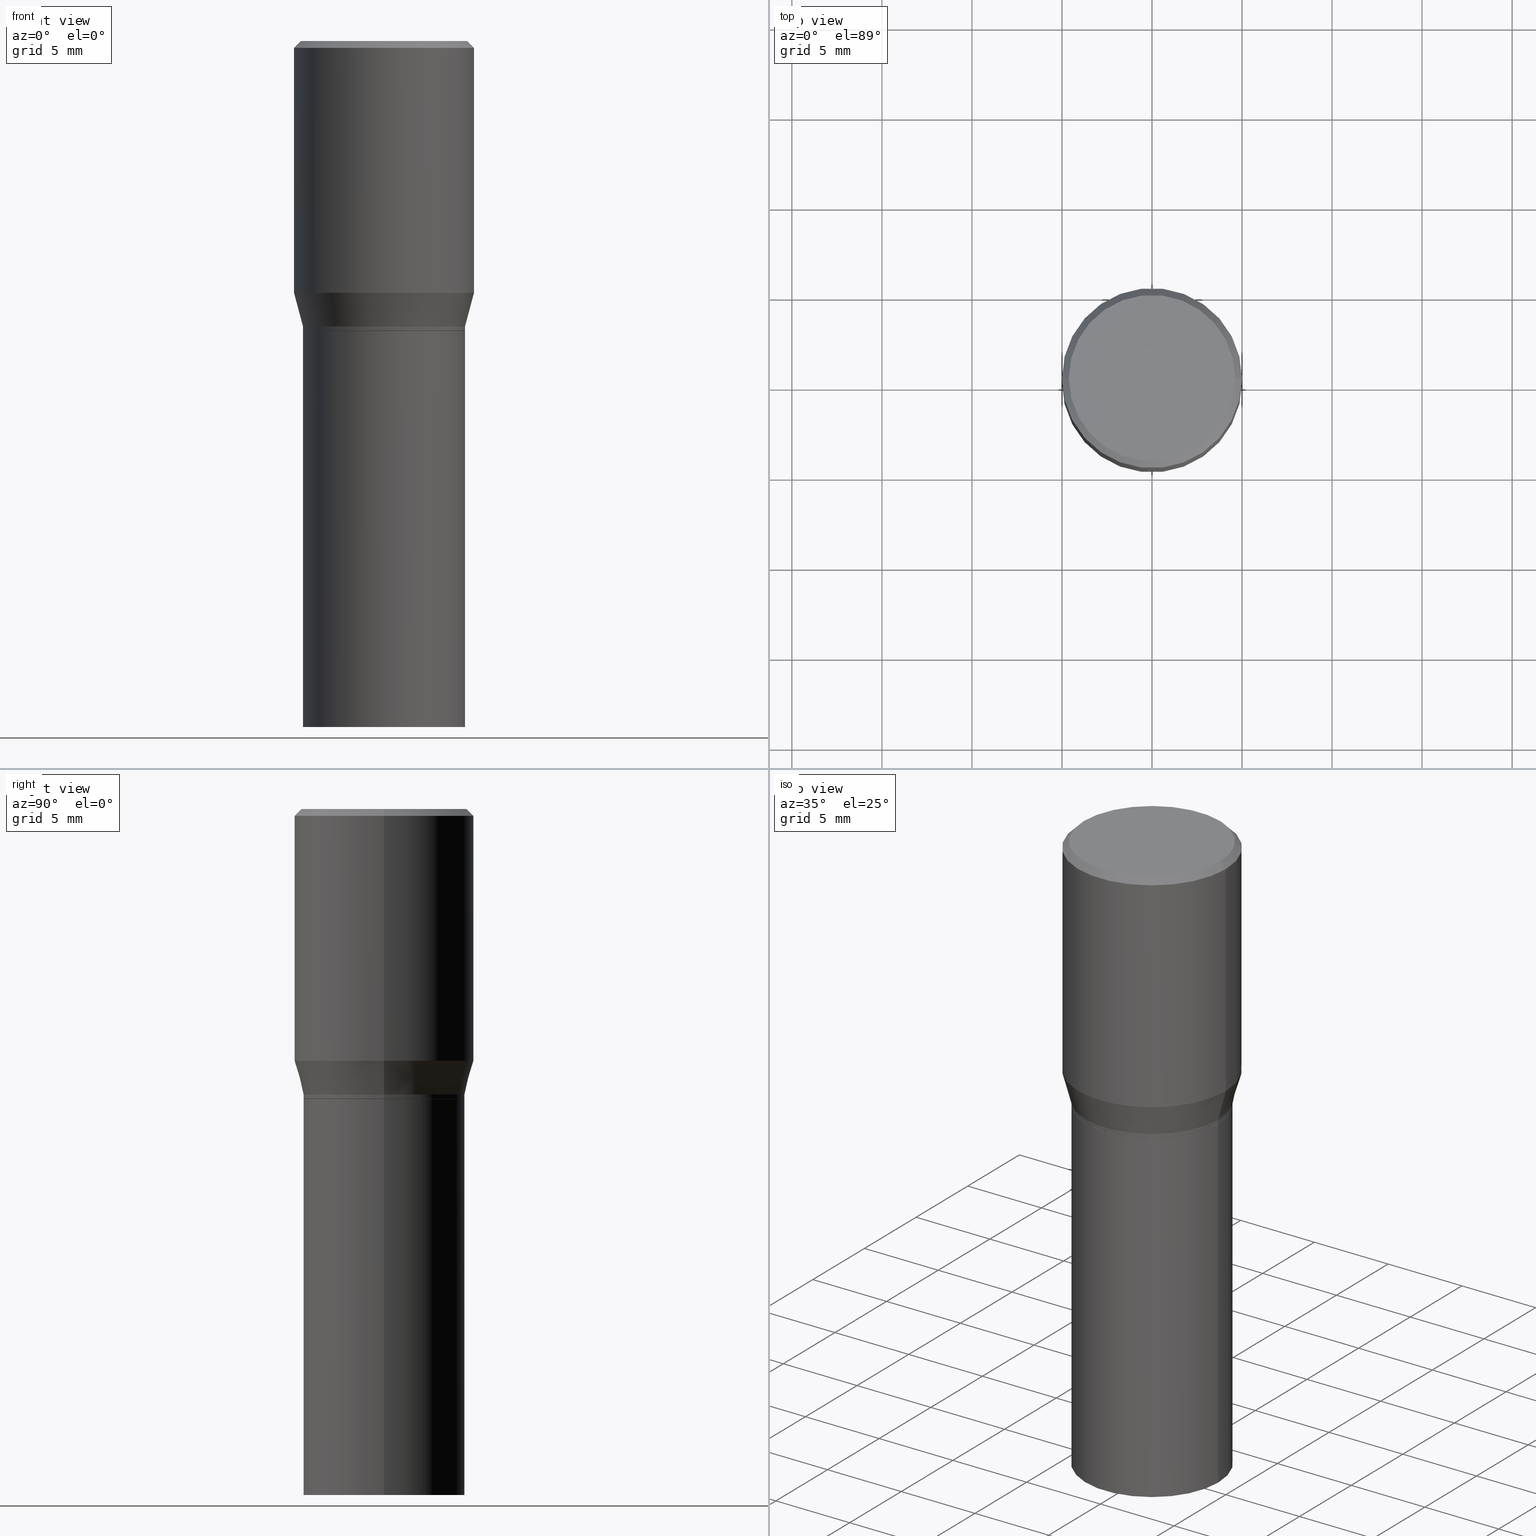
[diagram: canonical four-view strip — front | top / right | iso, engineering-drawing reading convention]
A machine part, canonical four-view strip (front | top / right | iso — engineering-drawing reading convention). The complete STEP part file that produces these views, byte-faithful:
ISO-10303-21;
HEADER;
FILE_DESCRIPTION (( 'STEP AP203' ),
    '1' );
FILE_NAME ('48662.STEP',
    '2024-03-12T19:40:19',
    ( '' ),
    ( '' ),
    'SwSTEP 2.0',
    'SolidWorks 2023',
    '' );
FILE_SCHEMA (( 'CONFIG_CONTROL_DESIGN' ));
ENDSEC;

DATA;
#1 = ORIENTED_EDGE ( 'NONE', *, *, #119, .F. ) ;
#2 = APPLICATION_CONTEXT ( 'configuration controlled 3d designs of mechanical parts and assemblies' ) ;
#3 = ORIENTED_EDGE ( 'NONE', *, *, #286, .T. ) ;
#4 = ADVANCED_FACE ( 'NONE', ( #360 ), #240, .F. ) ;
#5 = COORDINATED_UNIVERSAL_TIME_OFFSET ( 5, 0, .BEHIND. ) ;
#6 = ORIENTED_EDGE ( 'NONE', *, *, #158, .T. ) ;
#7 = ADVANCED_BREP_SHAPE_REPRESENTATION ( '48662', ( #460, #323, #337 ), #76 ) ;
#8 = VECTOR ( 'NONE', #53, 39.37007874015748143 ) ;
#9 = AXIS2_PLACEMENT_3D ( 'NONE', #16, #11, #416 ) ;
#10 = CARTESIAN_POINT ( 'NONE',  ( 0.000000000000000000, 0.000000000000000000, 0.000000000000000000 ) ) ;
#11 = DIRECTION ( 'NONE',  ( -2.445468806185136597E-29, 3.491481338843145583E-15, 1.000000000000000000 ) ) ;
#12 = ORIENTED_EDGE ( 'NONE', *, *, #145, .T. ) ;
#13 = APPROVAL_ROLE ( '' ) ;
#14 = DIRECTION ( 'NONE',  ( -2.445468806185136597E-29, 3.491481338843145583E-15, 1.000000000000000000 ) ) ;
#15 = CC_DESIGN_DATE_AND_TIME_ASSIGNMENT ( #92, #349, ( #91 ) ) ;
#16 = CARTESIAN_POINT ( 'NONE',  ( 1.548959941837665850E-29, -2.211504280023249073E-15, -0.6334000000000001851 ) ) ;
#17 = ORIENTED_EDGE ( 'NONE', *, *, #210, .F. ) ;
#18 = DIRECTION ( 'NONE',  ( -2.445468806185136597E-29, 3.491481338843145583E-15, 1.000000000000000000 ) ) ;
#19 = CLOSED_SHELL ( 'NONE', ( #398, #317, #361, #79 ) ) ;
#20 = APPROVAL_DATE_TIME ( #162, #402 ) ;
#21 = CARTESIAN_POINT ( 'NONE',  ( 3.668203209277705088E-31, -5.237222008264718399E-17, -0.01499999999999999944 ) ) ;
#22 = EDGE_LOOP ( 'NONE', ( #157, #115, #440, #118 ) ) ;
#23 = DIRECTION ( 'NONE',  ( -1.000000000000000000, 6.982962677686265922E-15, -4.876176775795935793E-29 ) ) ;
#24 = DIRECTION ( 'NONE',  ( -2.445468806185136597E-29, 3.491481338843145583E-15, 1.000000000000000000 ) ) ;
#25 = CC_DESIGN_PERSON_AND_ORGANIZATION_ASSIGNMENT ( #413, #264, ( #147 ) ) ;
#26 = CARTESIAN_POINT ( 'NONE',  ( 1.345933695668656235E-29, -1.921636608024489183E-15, -0.5503785990908939274 ) ) ;
#27 = LINE ( 'NONE', #457, #438 ) ;
#28 =( NAMED_UNIT ( * ) SI_UNIT ( $, .STERADIAN. ) SOLID_ANGLE_UNIT ( ) );
#29 = DIRECTION ( 'NONE',  ( 1.000000000000000000, -6.982962677686267499E-15, 0.000000000000000000 ) ) ;
#30 = DATE_TIME_ROLE ( 'classification_date' ) ;
#31 = AXIS2_PLACEMENT_3D ( 'NONE', #312, #85, #231 ) ;
#32 = LINE ( 'NONE', #180, #52 ) ;
#33 = EDGE_CURVE ( 'NONE', #161, #463, #259, .T. ) ;
#34 = APPROVAL_DATE_TIME ( #110, #206 ) ;
#35 = CC_DESIGN_APPROVAL ( #402, ( #147 ) ) ;
#36 = ORIENTED_EDGE ( 'NONE', *, *, #192, .F. ) ;
#37 = CALENDAR_DATE ( 2024, 12, 3 ) ;
#38 = ORIENTED_EDGE ( 'NONE', *, *, #434, .T. ) ;
#39 = CARTESIAN_POINT ( 'NONE',  ( 0.1771500000000001129, -3.415367045656361716E-15, -0.6239000000000001211 ) ) ;
#40 = CARTESIAN_POINT ( 'NONE',  ( 1.550182676240758652E-29, -2.213250020692670577E-15, -0.6339000000000001300 ) ) ;
#41 = ADVANCED_FACE ( 'NONE', ( #87 ), #387, .T. ) ;
#42 = ORIENTED_EDGE ( 'NONE', *, *, #365, .F. ) ;
#43 = AXIS2_PLACEMENT_3D ( 'NONE', #380, #313, #175 ) ;
#44 = AXIS2_PLACEMENT_3D ( 'NONE', #213, #130, #326 ) ;
#45 = ORIENTED_EDGE ( 'NONE', *, *, #195, .T. ) ;
#46 = LOCAL_TIME ( 15, 40, 19.00000000000000000, #367 ) ;
#47 = CARTESIAN_POINT ( 'NONE',  ( 0.1771500000000000019, -6.474253846616840571E-15, -1.500000000000000222 ) ) ;
#48 = DIRECTION ( 'NONE',  ( 1.000000000000000000, -6.982962677686266711E-15, 4.876176775795935793E-29 ) ) ;
#49 = ORIENTED_EDGE ( 'NONE', *, *, #192, .T. ) ;
#50 = CARTESIAN_POINT ( 'NONE',  ( 3.668203209277705088E-31, -5.237222008264718399E-17, -0.01499999999999999944 ) ) ;
#51 = ORIENTED_EDGE ( 'NONE', *, *, #355, .F. ) ;
#52 = VECTOR ( 'NONE', #223, 39.37007874015748143 ) ;
#53 = DIRECTION ( 'NONE',  ( -2.445468806185136877E-29, 3.491481338843145188E-15, 1.000000000000000000 ) ) ;
#54 = CARTESIAN_POINT ( 'NONE',  ( 0.1968500000000000527, -1.374596203102542003E-15, 9.598753983154302260E-30 ) ) ;
#55 = LINE ( 'NONE', #103, #343 ) ;
#56 = VERTEX_POINT ( 'NONE', #233 ) ;
#57 = FACE_OUTER_BOUND ( 'NONE', #382, .T. ) ;
#58 = LINE ( 'NONE', #376, #8 ) ;
#59 = EDGE_CURVE ( 'NONE', #348, #261, #58, .T. ) ;
#60 = DIRECTION ( 'NONE',  ( -0.7071067811865479058, 2.468850131082261005E-15, -0.7071067811865471286 ) ) ;
#61 = DIRECTION ( 'NONE',  ( -2.445468806185136597E-29, 3.491481338843145583E-15, 1.000000000000000000 ) ) ;
#62 = ORIENTED_EDGE ( 'NONE', *, *, #427, .F. ) ;
#63 = LINE ( 'NONE', #318, #301 ) ;
#64 = EDGE_CURVE ( 'NONE', #324, #316, #32, .T. ) ;
#65 = ORIENTED_EDGE ( 'NONE', *, *, #427, .T. ) ;
#66 = DIRECTION ( 'NONE',  ( 0.2588190451025220717, 1.565188264969615854E-15, 0.9659258262890678681 ) ) ;
#67 = AXIS2_PLACEMENT_3D ( 'NONE', #302, #439, #124 ) ;
#68 = VECTOR ( 'NONE', #185, 39.37007874015748143 ) ;
#69 = CARTESIAN_POINT ( 'NONE',  ( 1.550182676240758652E-29, -2.213250020692670577E-15, -0.6339000000000001300 ) ) ;
#70 = CARTESIAN_POINT ( 'NONE',  ( -0.1818500000000000116, 1.296037872978570989E-15, -6.472253288878428014E-18 ) ) ;
#71 =( CONVERSION_BASED_UNIT ( 'INCH', #97 ) LENGTH_UNIT ( ) NAMED_UNIT ( #131 ) );
#72 = FACE_OUTER_BOUND ( 'NONE', #435, .T. ) ;
#73 = CARTESIAN_POINT ( 'NONE',  ( 1.525727988178907107E-29, -2.178335207304238928E-15, -0.6239000000000001211 ) ) ;
#74 = DIRECTION ( 'NONE',  ( 1.000000000000000000, -6.982962677686266711E-15, 0.000000000000000000 ) ) ;
#75 = AXIS2_PLACEMENT_3D ( 'NONE', #305, #271, #245 ) ;
#76 =( GEOMETRIC_REPRESENTATION_CONTEXT ( 3 ) GLOBAL_UNCERTAINTY_ASSIGNED_CONTEXT ( ( #169 ) ) GLOBAL_UNIT_ASSIGNED_CONTEXT ( ( #71, #359, #28 ) ) REPRESENTATION_CONTEXT ( 'NONE', 'WORKASPACE' ) );
#77 = EDGE_CURVE ( 'NONE', #401, #154, #166, .T. ) ;
#78 = APPROVAL_STATUS ( 'not_yet_approved' ) ;
#79 = ADVANCED_FACE ( 'NONE', ( #295 ), #429, .F. ) ;
#80 = CONICAL_SURFACE ( 'NONE', #431, 0.1771500000000001129, 0.2617993877991508511 ) ;
#81 = EDGE_CURVE ( 'NONE', #194, #374, #176, .T. ) ;
#82 = LINE ( 'NONE', #193, #396 ) ;
#83 = CIRCLE ( 'NONE', #9, 0.1771500000000000852 ) ;
#84 = CARTESIAN_POINT ( 'NONE',  ( 0.000000000000000000, 0.000000000000000000, 0.000000000000000000 ) ) ;
#85 = DIRECTION ( 'NONE',  ( -2.445468806185136597E-29, 3.491481338843145583E-15, 1.000000000000000000 ) ) ;
#86 = ORIENTED_EDGE ( 'NONE', *, *, #158, .F. ) ;
#87 = FACE_OUTER_BOUND ( 'NONE', #306, .T. ) ;
#88 = DIRECTION ( 'NONE',  ( 1.000000000000000000, -6.982962677686266711E-15, 0.000000000000000000 ) ) ;
#89 = EDGE_LOOP ( 'NONE', ( #275, #209, #134, #6 ) ) ;
#90 = AXIS2_PLACEMENT_3D ( 'NONE', #423, #24, #251 ) ;
#91 = PRODUCT_DEFINITION ( 'UNKNOWN', '', #147, #244 ) ;
#92 = DATE_AND_TIME ( #37, #314 ) ;
#93 = ORIENTED_EDGE ( 'NONE', *, *, #266, .F. ) ;
#94 = CYLINDRICAL_SURFACE ( 'NONE', #454, 0.1771500000000000019 ) ;
#95 = ORIENTED_EDGE ( 'NONE', *, *, #77, .T. ) ;
#96 = LINE ( 'NONE', #415, #122 ) ;
#97 = LENGTH_MEASURE_WITH_UNIT ( LENGTH_MEASURE( 0.02539999999999999897 ), #108 );
#98 = PERSON_AND_ORGANIZATION ( #207, #184 ) ;
#99 = CARTESIAN_POINT ( 'NONE',  ( 0.1818500000000000116, -1.325221405919363357E-15, -6.472253288860382051E-18 ) ) ;
#100 = CARTESIAN_POINT ( 'NONE',  ( 1.582769352365941312E-46, -2.259775157835388046E-32, -6.472253288869456262E-18 ) ) ;
#101 = EDGE_LOOP ( 'NONE', ( #138, #281, #218, #51 ) ) ;
#102 = FACE_OUTER_BOUND ( 'NONE', #22, .T. ) ;
#103 = CARTESIAN_POINT ( 'NONE',  ( -0.1766500000000000015, -9.580762779724535881E-16, -0.6339000000000001300 ) ) ;
#104 = CYLINDRICAL_SURFACE ( 'NONE', #90, 0.1968500000000000527 ) ;
#105 = AXIS2_PLACEMENT_3D ( 'NONE', #421, #61, #164 ) ;
#106 = CIRCLE ( 'NONE', #370, 0.1818500000000000116 ) ;
#107 = CARTESIAN_POINT ( 'NONE',  ( 0.1766500000000000015, -3.446790377705949964E-15, -0.6339000000000001300 ) ) ;
#108 =( LENGTH_UNIT ( ) NAMED_UNIT ( * ) SI_UNIT ( $, .METRE. ) );
#109 = CARTESIAN_POINT ( 'NONE',  ( 1.550182676240758652E-29, -2.213250020692670577E-15, -0.6339000000000001300 ) ) ;
#110 = DATE_AND_TIME ( #327, #46 ) ;
#111 = ADVANCED_FACE ( 'NONE', ( #418 ), #104, .T. ) ;
#112 = CLOSED_SHELL ( 'NONE', ( #127, #41, #123, #111, #453, #424, #246, #345, #383, #4, #260, #465 ) ) ;
#113 = VECTOR ( 'NONE', #60, 39.37007874015748143 ) ;
#114 = PERSON_AND_ORGANIZATION ( #207, #184 ) ;
#115 = ORIENTED_EDGE ( 'NONE', *, *, #272, .T. ) ;
#116 = CIRCLE ( 'NONE', #150, 0.1968500000000000527 ) ;
#117 = EDGE_LOOP ( 'NONE', ( #3, #211 ) ) ;
#118 = ORIENTED_EDGE ( 'NONE', *, *, #145, .F. ) ;
#119 = EDGE_CURVE ( 'NONE', #194, #186, #373, .T. ) ;
#120 = DIRECTION ( 'NONE',  ( -2.445468806185136877E-29, 3.491481338843145188E-15, 1.000000000000000000 ) ) ;
#121 = DATE_AND_TIME ( #437, #191 ) ;
#122 = VECTOR ( 'NONE', #66, 39.37007874015748854 ) ;
#123 = ADVANCED_FACE ( 'NONE', ( #72 ), #129, .T. ) ;
#124 = DIRECTION ( 'NONE',  ( 1.000000000000000000, -6.982962677686267499E-15, 0.000000000000000000 ) ) ;
#125 = EDGE_LOOP ( 'NONE', ( #466, #263, #12, #428 ) ) ;
#126 = PLANE ( 'NONE',  #388 ) ;
#127 = ADVANCED_FACE ( 'NONE', ( #329 ), #182, .T. ) ;
#128 = ORIENTED_EDGE ( 'NONE', *, *, #395, .T. ) ;
#129 = CONICAL_SURFACE ( 'NONE', #300, 0.1968500000000000250, 0.7853981633974488341 ) ;
#130 = DIRECTION ( 'NONE',  ( -2.445468806185136597E-29, 3.491481338843145583E-15, 1.000000000000000000 ) ) ;
#131 = DIMENSIONAL_EXPONENTS ( 1.000000000000000000, 0.000000000000000000, 0.000000000000000000, 0.000000000000000000, 0.000000000000000000, 0.000000000000000000, 0.000000000000000000 ) ;
#132 = CARTESIAN_POINT ( 'NONE',  ( -0.1968500000000000250, 4.116989612901891144E-16, -0.01499999999999999944 ) ) ;
#133 = PRODUCT ( '48662', '48662', '', ( #369 ) ) ;
#134 = ORIENTED_EDGE ( 'NONE', *, *, #333, .T. ) ;
#135 = FACE_OUTER_BOUND ( 'NONE', #406, .T. ) ;
#136 = APPLICATION_CONTEXT ( 'configuration controlled 3d designs of mechanical parts and assemblies' ) ;
#137 = DIRECTION ( 'NONE',  ( 1.000000000000000000, -6.982962677686265922E-15, 0.000000000000000000 ) ) ;
#138 = ORIENTED_EDGE ( 'NONE', *, *, #224, .T. ) ;
#139 = DIRECTION ( 'NONE',  ( -2.445468806185136877E-29, 3.491481338843145188E-15, 1.000000000000000000 ) ) ;
#140 = DIRECTION ( 'NONE',  ( -2.445468806185136877E-29, 3.491481338843145188E-15, 1.000000000000000000 ) ) ;
#141 = AXIS2_PLACEMENT_3D ( 'NONE', #258, #330, #48 ) ;
#142 = AXIS2_PLACEMENT_3D ( 'NONE', #283, #160, #170 ) ;
#143 = DIRECTION ( 'NONE',  ( -0.2588190451025220717, 5.211531920934554197E-15, 0.9659258262890678681 ) ) ;
#144 = CC_DESIGN_PERSON_AND_ORGANIZATION_ASSIGNMENT ( #149, #296, ( #133 ) ) ;
#145 = EDGE_CURVE ( 'NONE', #463, #341, #82, .T. ) ;
#146 = AXIS2_PLACEMENT_3D ( 'NONE', #220, #181, #23 ) ;
#147 = PRODUCT_DEFINITION_FORMATION_WITH_SPECIFIED_SOURCE ( 'ANY', '', #133, .NOT_KNOWN. ) ;
#148 = SHAPE_DEFINITION_REPRESENTATION ( #285, #7 ) ;
#149 = PERSON_AND_ORGANIZATION ( #207, #184 ) ;
#150 = AXIS2_PLACEMENT_3D ( 'NONE', #26, #379, #204 ) ;
#151 = CIRCLE ( 'NONE', #462, 0.1771500000000000019 ) ;
#152 = ORIENTED_EDGE ( 'NONE', *, *, #224, .F. ) ;
#153 = PRODUCT_RELATED_PRODUCT_CATEGORY ( 'detail', '', ( #133 ) ) ;
#154 = VERTEX_POINT ( 'NONE', #265 ) ;
#155 = AXIS2_PLACEMENT_3D ( 'NONE', #109, #255, #29 ) ;
#156 = DIRECTION ( 'NONE',  ( 1.000000000000000000, -6.982962677686265922E-15, 0.000000000000000000 ) ) ;
#157 = ORIENTED_EDGE ( 'NONE', *, *, #365, .T. ) ;
#158 = EDGE_CURVE ( 'NONE', #261, #316, #331, .T. ) ;
#159 = DIRECTION ( 'NONE',  ( -2.445468806185136597E-29, 3.491481338843145583E-15, 1.000000000000000000 ) ) ;
#160 = DIRECTION ( 'NONE',  ( -2.445468806185136597E-29, 3.491481338843145583E-15, 1.000000000000000000 ) ) ;
#161 = VERTEX_POINT ( 'NONE', #199 ) ;
#162 = DATE_AND_TIME ( #356, #425 ) ;
#163 = CARTESIAN_POINT ( 'NONE',  ( 3.576687321579069994E-29, -5.368277968210015545E-15, -1.500000000000000222 ) ) ;
#164 = DIRECTION ( 'NONE',  ( 1.000000000000000000, -6.982962677686265922E-15, 0.000000000000000000 ) ) ;
#165 = ORIENTED_EDGE ( 'NONE', *, *, #167, .T. ) ;
#166 = CIRCLE ( 'NONE', #352, 0.1766500000000000015 ) ;
#167 = EDGE_CURVE ( 'NONE', #348, #449, #461, .T. ) ;
#168 = AXIS2_PLACEMENT_3D ( 'NONE', #358, #444, #249 ) ;
#169 = UNCERTAINTY_MEASURE_WITH_UNIT (LENGTH_MEASURE( 1.000000000000000082E-05 ), #71, 'distance_accuracy_value', 'NONE');
#170 = DIRECTION ( 'NONE',  ( 1.000000000000000000, -6.982962677686265922E-15, 0.000000000000000000 ) ) ;
#171 = EDGE_LOOP ( 'NONE', ( #232, #165, #298, #86 ) ) ;
#172 = APPLICATION_PROTOCOL_DEFINITION ( 'international standard', 'config_control_design', 1994, #136 ) ;
#173 = DIRECTION ( 'NONE',  ( -0.7071067811865715536, 7.493145998870439357E-15, 0.7071067811865232589 ) ) ;
#174 = DIRECTION ( 'NONE',  ( 1.000000000000000000, -6.982962677686265922E-15, 0.000000000000000000 ) ) ;
#175 = DIRECTION ( 'NONE',  ( 1.000000000000000000, -6.982962677686265922E-15, 4.876176775795935793E-29 ) ) ;
#176 = CIRCLE ( 'NONE', #362, 0.1771500000000000852 ) ;
#177 = AXIS2_PLACEMENT_3D ( 'NONE', #309, #290, #389 ) ;
#178 = APPROVAL_ROLE ( '' ) ;
#179 = CC_DESIGN_PERSON_AND_ORGANIZATION_ASSIGNMENT ( #228, #403, ( #91 ) ) ;
#180 = CARTESIAN_POINT ( 'NONE',  ( 0.1968500000000000250, -1.402861250943973297E-15, -0.01499999999999999944 ) ) ;
#181 = DIRECTION ( 'NONE',  ( 2.438088387897960049E-29, -3.491481338843145188E-15, -1.000000000000000000 ) ) ;
#182 = CYLINDRICAL_SURFACE ( 'NONE', #141, 0.1771500000000001129 ) ;
#183 = CC_DESIGN_PERSON_AND_ORGANIZATION_ASSIGNMENT ( #98, #340, ( #147 ) ) ;
#184 = ORGANIZATION ( 'UNSPECIFIED', 'UNSPECIFIED', '' ) ;
#185 = DIRECTION ( 'NONE',  ( -2.445468806185136877E-29, 3.491481338843145188E-15, 1.000000000000000000 ) ) ;
#186 = VERTEX_POINT ( 'NONE', #39 ) ;
#187 = CARTESIAN_POINT ( 'NONE',  ( 1.525727988178907107E-29, -2.178335207304238928E-15, -0.6239000000000001211 ) ) ;
#188 = EDGE_LOOP ( 'NONE', ( #299, #303 ) ) ;
#189 = CIRCLE ( 'NONE', #235, 0.1771500000000001129 ) ;
#190 = ORIENTED_EDGE ( 'NONE', *, *, #395, .F. ) ;
#191 = LOCAL_TIME ( 15, 40, 19.00000000000000000, #262 ) ;
#192 = EDGE_CURVE ( 'NONE', #407, #186, #189, .T. ) ;
#193 = CARTESIAN_POINT ( 'NONE',  ( 0.1771500000000000019, -1.237031838352122197E-15, 8.638147158322499960E-30 ) ) ;
#194 = VERTEX_POINT ( 'NONE', #357 ) ;
#195 = EDGE_CURVE ( 'NONE', #186, #407, #325, .T. ) ;
#196 = DIRECTION ( 'NONE',  ( 2.445468806185136597E-29, -3.491481338843145583E-15, -1.000000000000000000 ) ) ;
#197 = ORIENTED_EDGE ( 'NONE', *, *, #254, .T. ) ;
#198 = CARTESIAN_POINT ( 'NONE',  ( 1.550182676240758652E-29, -2.213250020692670577E-15, -0.6339000000000001300 ) ) ;
#199 = CARTESIAN_POINT ( 'NONE',  ( -0.1771500000000000019, -2.466509558079677081E-15, -1.500000000000000222 ) ) ;
#200 = CONICAL_SURFACE ( 'NONE', #332, 0.1968500000000000250, 0.7853981633974488341 ) ;
#201 = EDGE_LOOP ( 'NONE', ( #443, #338, #304, #36 ) ) ;
#202 = EDGE_CURVE ( 'NONE', #154, #374, #55, .T. ) ;
#203 = DIRECTION ( 'NONE',  ( -2.445468806185136877E-29, 3.491481338843145188E-15, 1.000000000000000000 ) ) ;
#204 = DIRECTION ( 'NONE',  ( 1.000000000000000000, -6.982962677686267499E-15, 0.000000000000000000 ) ) ;
#205 = ORIENTED_EDGE ( 'NONE', *, *, #81, .T. ) ;
#206 = APPROVAL ( #257, 'UNSPECIFIED' ) ;
#207 = PERSON ( 'UNSPECIFIED', 'UNSPECIFIED', 'UNSPECIFIED', ('UNSPECIFIED'), ('UNSPECIFIED'), ('UNSPECIFIED') ) ;
#208 = DIRECTION ( 'NONE',  ( -2.445468806185136597E-29, 3.491481338843145583E-15, 1.000000000000000000 ) ) ;
#209 = ORIENTED_EDGE ( 'NONE', *, *, #254, .F. ) ;
#210 = EDGE_CURVE ( 'NONE', #374, #194, #83, .T. ) ;
#211 = ORIENTED_EDGE ( 'NONE', *, *, #308, .T. ) ;
#212 = AXIS2_PLACEMENT_3D ( 'NONE', #268, #236, #156 ) ;
#213 = CARTESIAN_POINT ( 'NONE',  ( 0.000000000000000000, 0.000000000000000000, 0.000000000000000000 ) ) ;
#214 = SECURITY_CLASSIFICATION ( '', '', #238 ) ;
#215 = PLANE ( 'NONE',  #168 ) ;
#216 = COORDINATED_UNIVERSAL_TIME_OFFSET ( 5, 0, .BEHIND. ) ;
#217 = CARTESIAN_POINT ( 'NONE',  ( 1.582769352365941312E-46, -2.259775157835388046E-32, -6.472253288869456262E-18 ) ) ;
#218 = ORIENTED_EDGE ( 'NONE', *, *, #239, .F. ) ;
#219 = DIRECTION ( 'NONE',  ( 1.000000000000000000, -6.982962677686266711E-15, 0.000000000000000000 ) ) ;
#220 = CARTESIAN_POINT ( 'NONE',  ( 1.237031838352137579E-15, 0.1771499999999977815, -0.6339000000000009072 ) ) ;
#221 = DATE_AND_TIME ( #464, #426 ) ;
#222 = PERSON_AND_ORGANIZATION_ROLE ( 'classification_officer' ) ;
#223 = DIRECTION ( 'NONE',  ( 0.7071067811865479058, -7.319954787623257623E-15, -0.7071067811865471286 ) ) ;
#224 = EDGE_CURVE ( 'NONE', #449, #348, #116, .T. ) ;
#225 = ORIENTED_EDGE ( 'NONE', *, *, #229, .T. ) ;
#226 = AXIS2_PLACEMENT_3D ( 'NONE', #100, #442, #274 ) ;
#227 = CC_DESIGN_SECURITY_CLASSIFICATION ( #214, ( #147 ) ) ;
#228 = PERSON_AND_ORGANIZATION ( #207, #184 ) ;
#229 = EDGE_CURVE ( 'NONE', #154, #401, #289, .T. ) ;
#230 = ORIENTED_EDGE ( 'NONE', *, *, #333, .F. ) ;
#231 = DIRECTION ( 'NONE',  ( 1.000000000000000000, -6.982962677686265922E-15, 0.000000000000000000 ) ) ;
#232 = ORIENTED_EDGE ( 'NONE', *, *, #59, .F. ) ;
#233 = CARTESIAN_POINT ( 'NONE',  ( -0.1771500000000000019, -2.466509558079677081E-15, -0.6339000000000001300 ) ) ;
#234 = DIRECTION ( 'NONE',  ( -1.000000000000000000, 6.982962677686265922E-15, 0.000000000000000000 ) ) ;
#235 = AXIS2_PLACEMENT_3D ( 'NONE', #187, #315, #137 ) ;
#236 = DIRECTION ( 'NONE',  ( -2.445468806185136597E-29, 3.491481338843145583E-15, 1.000000000000000000 ) ) ;
#237 = CONICAL_SURFACE ( 'NONE', #31, 0.1771500000000001129, 0.2617993877991508511 ) ;
#238 = SECURITY_CLASSIFICATION_LEVEL ( 'unclassified' ) ;
#239 = EDGE_CURVE ( 'NONE', #316, #261, #294, .T. ) ;
#240 = PLANE ( 'NONE',  #43 ) ;
#241 = ORIENTED_EDGE ( 'NONE', *, *, #375, .F. ) ;
#242 = FACE_OUTER_BOUND ( 'NONE', #414, .T. ) ;
#243 = DIRECTION ( 'NONE',  ( -2.445468806185136597E-29, 3.491481338843145583E-15, 1.000000000000000000 ) ) ;
#244 = DESIGN_CONTEXT ( 'detailed design', #2, 'design' ) ;
#245 = DIRECTION ( 'NONE',  ( 1.000000000000000000, -6.982962677686266711E-15, 0.000000000000000000 ) ) ;
#246 = ADVANCED_FACE ( 'NONE', ( #393 ), #347, .T. ) ;
#247 = CARTESIAN_POINT ( 'NONE',  ( -0.1968500000000000250, 1.322223983019894529E-15, -0.01499999999999999944 ) ) ;
#248 = EDGE_LOOP ( 'NONE', ( #205, #38, #310, #1 ) ) ;
#249 = DIRECTION ( 'NONE',  ( -1.000000000000000000, 6.982962677686265922E-15, -4.876176775795935793E-29 ) ) ;
#250 = FACE_OUTER_BOUND ( 'NONE', #336, .T. ) ;
#251 = DIRECTION ( 'NONE',  ( 1.000000000000000000, -6.982962677686266711E-15, 4.876176775795935793E-29 ) ) ;
#252 = AXIS2_PLACEMENT_3D ( 'NONE', #287, #420, #269 ) ;
#253 = PERSON_AND_ORGANIZATION ( #207, #184 ) ;
#254 = EDGE_CURVE ( 'NONE', #411, #324, #363, .T. ) ;
#255 = DIRECTION ( 'NONE',  ( -2.445468806185136597E-29, 3.491481338843145583E-15, 1.000000000000000000 ) ) ;
#256 = AXIS2_PLACEMENT_3D ( 'NONE', #452, #208, #455 ) ;
#257 = APPROVAL_STATUS ( 'not_yet_approved' ) ;
#258 = CARTESIAN_POINT ( 'NONE',  ( 0.000000000000000000, 0.000000000000000000, 0.000000000000000000 ) ) ;
#259 = CIRCLE ( 'NONE', #75, 0.1771500000000000019 ) ;
#260 = ADVANCED_FACE ( 'NONE', ( #250 ), #344, .T. ) ;
#261 = VERTEX_POINT ( 'NONE', #132 ) ;
#262 = COORDINATED_UNIVERSAL_TIME_OFFSET ( 5, 0, .BEHIND. ) ;
#263 = ORIENTED_EDGE ( 'NONE', *, *, #33, .T. ) ;
#264 = PERSON_AND_ORGANIZATION_ROLE ( 'creator' ) ;
#265 = CARTESIAN_POINT ( 'NONE',  ( -0.1766500000000000015, -9.554270507983421899E-16, -0.6339000000000001300 ) ) ;
#266 = EDGE_CURVE ( 'NONE', #324, #411, #106, .T. ) ;
#267 = CIRCLE ( 'NONE', #377, 0.1771500000000000019 ) ;
#268 = CARTESIAN_POINT ( 'NONE',  ( 3.668203209277705088E-31, -5.237222008264718399E-17, -0.01499999999999999944 ) ) ;
#269 = DIRECTION ( 'NONE',  ( 1.000000000000000000, -6.982962677686266711E-15, 0.000000000000000000 ) ) ;
#270 = ORIENTED_EDGE ( 'NONE', *, *, #81, .F. ) ;
#271 = DIRECTION ( 'NONE',  ( -2.445468806185136597E-29, 3.491481338843145583E-15, 1.000000000000000000 ) ) ;
#272 = EDGE_CURVE ( 'NONE', #161, #56, #63, .T. ) ;
#273 = LINE ( 'NONE', #247, #113 ) ;
#274 = DIRECTION ( 'NONE',  ( 1.000000000000000000, -6.982962677686266711E-15, 4.876336753188190607E-29 ) ) ;
#275 = ORIENTED_EDGE ( 'NONE', *, *, #64, .F. ) ;
#276 = CYLINDRICAL_SURFACE ( 'NONE', #44, 0.1771500000000000019 ) ;
#277 = FACE_OUTER_BOUND ( 'NONE', #201, .T. ) ;
#278 = APPROVAL ( #78, 'UNSPECIFIED' ) ;
#279 = FACE_OUTER_BOUND ( 'NONE', #89, .T. ) ;
#280 = DIRECTION ( 'NONE',  ( -2.445468806185136597E-29, 3.491481338843145583E-15, 1.000000000000000000 ) ) ;
#281 = ORIENTED_EDGE ( 'NONE', *, *, #59, .T. ) ;
#282 = CARTESIAN_POINT ( 'NONE',  ( 0.000000000000000000, 0.000000000000000000, 0.000000000000000000 ) ) ;
#283 = CARTESIAN_POINT ( 'NONE',  ( 3.668203209277705088E-31, -5.237222008264718399E-17, -0.01499999999999999944 ) ) ;
#284 = CARTESIAN_POINT ( 'NONE',  ( 0.1766500000000000015, -3.446790377705949964E-15, -0.6339000000000001300 ) ) ;
#285 = PRODUCT_DEFINITION_SHAPE ( 'NONE', 'NONE',  #91 ) ;
#286 = EDGE_CURVE ( 'NONE', #341, #56, #400, .T. ) ;
#287 = CARTESIAN_POINT ( 'NONE',  ( 1.550182676240758652E-29, -2.213250020692670577E-15, -0.6339000000000001300 ) ) ;
#288 = CARTESIAN_POINT ( 'NONE',  ( -0.1771500000000000852, -9.527778236242309889E-16, -0.6334000000000001851 ) ) ;
#289 = CIRCLE ( 'NONE', #256, 0.1766500000000000015 ) ;
#290 = DIRECTION ( 'NONE',  ( -2.445468806185136597E-29, 3.491481338843145583E-15, 1.000000000000000000 ) ) ;
#291 = LINE ( 'NONE', #422, #68 ) ;
#292 = PERSON_AND_ORGANIZATION ( #207, #184 ) ;
#293 = CARTESIAN_POINT ( 'NONE',  ( 0.1968500000000000527, -3.296232811127031185E-15, -0.5503785990908939274 ) ) ;
#294 = CIRCLE ( 'NONE', #142, 0.1968500000000000250 ) ;
#295 = FACE_OUTER_BOUND ( 'NONE', #117, .T. ) ;
#296 = PERSON_AND_ORGANIZATION_ROLE ( 'design_owner' ) ;
#297 = VECTOR ( 'NONE', #140, 39.37007874015748143 ) ;
#298 = ORIENTED_EDGE ( 'NONE', *, *, #355, .T. ) ;
#299 = ORIENTED_EDGE ( 'NONE', *, *, #77, .F. ) ;
#300 = AXIS2_PLACEMENT_3D ( 'NONE', #50, #196, #342 ) ;
#301 = VECTOR ( 'NONE', #139, 39.37007874015748143 ) ;
#302 = CARTESIAN_POINT ( 'NONE',  ( 1.345933695668656235E-29, -1.921636608024489183E-15, -0.5503785990908939274 ) ) ;
#303 = ORIENTED_EDGE ( 'NONE', *, *, #229, .F. ) ;
#304 = ORIENTED_EDGE ( 'NONE', *, *, #119, .T. ) ;
#305 = CARTESIAN_POINT ( 'NONE',  ( 3.668203209277704895E-29, -5.237222008264718177E-15, -1.500000000000000222 ) ) ;
#306 = EDGE_LOOP ( 'NONE', ( #95, #459, #270, #241 ) ) ;
#307 = DIRECTION ( 'NONE',  ( 1.000000000000000000, -6.982962677686266711E-15, 4.876176775795935793E-29 ) ) ;
#308 = EDGE_CURVE ( 'NONE', #56, #341, #267, .T. ) ;
#309 = CARTESIAN_POINT ( 'NONE',  ( 0.000000000000000000, 0.000000000000000000, 0.000000000000000000 ) ) ;
#310 = ORIENTED_EDGE ( 'NONE', *, *, #195, .F. ) ;
#311 = CARTESIAN_POINT ( 'NONE',  ( 3.668203209277704895E-29, -5.237222008264718177E-15, -1.500000000000000222 ) ) ;
#312 = CARTESIAN_POINT ( 'NONE',  ( 1.525727988178907107E-29, -2.178335207304238928E-15, -0.6239000000000001211 ) ) ;
#313 = DIRECTION ( 'NONE',  ( -2.438088387897960049E-29, 3.491481338843145188E-15, 1.000000000000000000 ) ) ;
#314 = LOCAL_TIME ( 15, 40, 19.00000000000000000, #5 ) ;
#315 = DIRECTION ( 'NONE',  ( -2.445468806185136597E-29, 3.491481338843145583E-15, 1.000000000000000000 ) ) ;
#316 = VERTEX_POINT ( 'NONE', #384 ) ;
#317 = ADVANCED_FACE ( 'NONE', ( #408 ), #126, .F. ) ;
#318 = CARTESIAN_POINT ( 'NONE',  ( -0.1771500000000000019, 1.258726456399017493E-15, -8.713893512386565325E-30 ) ) ;
#319 = ORIENTED_EDGE ( 'NONE', *, *, #33, .F. ) ;
#320 = DIRECTION ( 'NONE',  ( 0.000000000000000000, 0.000000000000000000, 1.000000000000000000 ) ) ;
#321 = DIRECTION ( 'NONE',  ( -2.445468806185136597E-29, 3.491481338843145583E-15, 1.000000000000000000 ) ) ;
#322 = CARTESIAN_POINT ( 'NONE',  ( 1.548959941837665850E-29, -2.211504280023249073E-15, -0.6334000000000001851 ) ) ;
#323 = MANIFOLD_SOLID_BREP ( 'Body-Move/Copy2[2]', #112 ) ;
#324 = VERTEX_POINT ( 'NONE', #99 ) ;
#325 = CIRCLE ( 'NONE', #105, 0.1771500000000001129 ) ;
#326 = DIRECTION ( 'NONE',  ( 1.000000000000000000, -6.982962677686266711E-15, 4.876176775795935793E-29 ) ) ;
#327 = CALENDAR_DATE ( 2024, 12, 3 ) ;
#328 = CC_DESIGN_DATE_AND_TIME_ASSIGNMENT ( #221, #30, ( #214 ) ) ;
#329 = FACE_OUTER_BOUND ( 'NONE', #248, .T. ) ;
#330 = DIRECTION ( 'NONE',  ( -2.445468806185136597E-29, 3.491481338843145583E-15, 1.000000000000000000 ) ) ;
#331 = CIRCLE ( 'NONE', #212, 0.1968500000000000250 ) ;
#332 = AXIS2_PLACEMENT_3D ( 'NONE', #21, #410, #234 ) ;
#333 = EDGE_CURVE ( 'NONE', #411, #261, #273, .T. ) ;
#334 = PERSON_AND_ORGANIZATION ( #207, #184 ) ;
#335 = DIRECTION ( 'NONE',  ( 1.000000000000000000, -6.982962677686267499E-15, 0.000000000000000000 ) ) ;
#336 = EDGE_LOOP ( 'NONE', ( #386, #225, #350, #17 ) ) ;
#337 = AXIS2_PLACEMENT_3D ( 'NONE', #282, #320, #451 ) ;
#338 = ORIENTED_EDGE ( 'NONE', *, *, #210, .T. ) ;
#339 = ORIENTED_EDGE ( 'NONE', *, *, #239, .T. ) ;
#340 = PERSON_AND_ORGANIZATION_ROLE ( 'design_supplier' ) ;
#341 = VERTEX_POINT ( 'NONE', #353 ) ;
#342 = DIRECTION ( 'NONE',  ( -1.000000000000000000, 6.982962677686265922E-15, 0.000000000000000000 ) ) ;
#343 = VECTOR ( 'NONE', #173, 39.37007874015748854 ) ;
#344 = CONICAL_SURFACE ( 'NONE', #364, 0.1766500000000000015, 0.7853981633974824739 ) ;
#345 = ADVANCED_FACE ( 'NONE', ( #279 ), #200, .T. ) ;
#346 = FACE_OUTER_BOUND ( 'NONE', #125, .T. ) ;
#347 = CYLINDRICAL_SURFACE ( 'NONE', #177, 0.1968500000000000527 ) ;
#348 = VERTEX_POINT ( 'NONE', #378 ) ;
#349 = DATE_TIME_ROLE ( 'creation_date' ) ;
#350 = ORIENTED_EDGE ( 'NONE', *, *, #375, .T. ) ;
#351 = DIRECTION ( 'NONE',  ( -2.445468806185136597E-29, 3.491481338843145583E-15, 1.000000000000000000 ) ) ;
#352 = AXIS2_PLACEMENT_3D ( 'NONE', #40, #366, #335 ) ;
#353 = CARTESIAN_POINT ( 'NONE',  ( 0.1771500000000000019, -3.450281859044792971E-15, -0.6339000000000001300 ) ) ;
#354 = ORIENTED_EDGE ( 'NONE', *, *, #167, .F. ) ;
#355 = EDGE_CURVE ( 'NONE', #449, #316, #441, .T. ) ;
#356 = CALENDAR_DATE ( 2024, 12, 3 ) ;
#357 = CARTESIAN_POINT ( 'NONE',  ( 0.1771500000000000852, -3.448536118375371467E-15, -0.6334000000000001851 ) ) ;
#358 = CARTESIAN_POINT ( 'NONE',  ( 1.269851762937247450E-15, 0.1818500000000000116, -6.381620081130607218E-16 ) ) ;
#359 =( NAMED_UNIT ( * ) PLANE_ANGLE_UNIT ( ) SI_UNIT ( $, .RADIAN. ) );
#360 = FACE_OUTER_BOUND ( 'NONE', #188, .T. ) ;
#361 = ADVANCED_FACE ( 'NONE', ( #346 ), #94, .T. ) ;
#362 = AXIS2_PLACEMENT_3D ( 'NONE', #322, #458, #74 ) ;
#363 = CIRCLE ( 'NONE', #226, 0.1818500000000000116 ) ;
#364 = AXIS2_PLACEMENT_3D ( 'NONE', #69, #321, #447 ) ;
#365 = EDGE_CURVE ( 'NONE', #463, #161, #151, .T. ) ;
#366 = DIRECTION ( 'NONE',  ( -2.445468806185136597E-29, 3.491481338843145583E-15, 1.000000000000000000 ) ) ;
#367 = COORDINATED_UNIVERSAL_TIME_OFFSET ( 5, 0, .BEHIND. ) ;
#368 = VECTOR ( 'NONE', #203, 39.37007874015748143 ) ;
#369 = MECHANICAL_CONTEXT ( 'NONE', #136, 'mechanical' ) ;
#370 = AXIS2_PLACEMENT_3D ( 'NONE', #217, #280, #385 ) ;
#371 = APPROVAL_ROLE ( '' ) ;
#372 = ORIENTED_EDGE ( 'NONE', *, *, #64, .T. ) ;
#373 = LINE ( 'NONE', #391, #297 ) ;
#374 = VERTEX_POINT ( 'NONE', #288 ) ;
#375 = EDGE_CURVE ( 'NONE', #401, #194, #450, .T. ) ;
#376 = CARTESIAN_POINT ( 'NONE',  ( -0.1968500000000000527, 1.398703375343757590E-15, -9.682923725166785079E-30 ) ) ;
#377 = AXIS2_PLACEMENT_3D ( 'NONE', #198, #14, #88 ) ;
#378 = CARTESIAN_POINT ( 'NONE',  ( -0.1968500000000000527, -5.229332326807317894E-16, -0.5503785990908939274 ) ) ;
#379 = DIRECTION ( 'NONE',  ( -2.445468806185136597E-29, 3.491481338843145583E-15, 1.000000000000000000 ) ) ;
#380 = CARTESIAN_POINT ( 'NONE',  ( 1.550182676240758652E-29, -2.213250020692670577E-15, -0.6339000000000001300 ) ) ;
#381 = DIRECTION ( 'NONE',  ( -2.438088387897960049E-29, 3.491481338843145188E-15, 1.000000000000000000 ) ) ;
#382 = EDGE_LOOP ( 'NONE', ( #45, #65, #152, #190 ) ) ;
#383 = ADVANCED_FACE ( 'NONE', ( #135 ), #215, .F. ) ;
#384 = CARTESIAN_POINT ( 'NONE',  ( 0.1968500000000000250, -1.426968423185188885E-15, -0.01499999999999999944 ) ) ;
#385 = DIRECTION ( 'NONE',  ( 1.000000000000000000, -6.982962677686266711E-15, 4.876336753188190607E-29 ) ) ;
#386 = ORIENTED_EDGE ( 'NONE', *, *, #202, .F. ) ;
#387 = CONICAL_SURFACE ( 'NONE', #155, 0.1766500000000000015, 0.7853981633974824739 ) ;
#388 = AXIS2_PLACEMENT_3D ( 'NONE', #163, #381, #446 ) ;
#389 = DIRECTION ( 'NONE',  ( 1.000000000000000000, -6.982962677686266711E-15, 4.876176775795935793E-29 ) ) ;
#390 = CARTESIAN_POINT ( 'NONE',  ( -0.1771500000000001129, -7.212709917929761191E-16, -0.6239000000000001211 ) ) ;
#391 = CARTESIAN_POINT ( 'NONE',  ( 0.1771500000000001129, -1.237031838352122986E-15, 8.638147158322505565E-30 ) ) ;
#392 = APPROVAL_STATUS ( 'not_yet_approved' ) ;
#393 = FACE_OUTER_BOUND ( 'NONE', #171, .T. ) ;
#394 = DIRECTION ( 'NONE',  ( 1.000000000000000000, -6.982962677686266711E-15, 4.876176775795935793E-29 ) ) ;
#395 = EDGE_CURVE ( 'NONE', #186, #449, #96, .T. ) ;
#396 = VECTOR ( 'NONE', #120, 39.37007874015748143 ) ;
#397 = APPROVAL_PERSON_ORGANIZATION ( #114, #278, #371 ) ;
#398 = ADVANCED_FACE ( 'NONE', ( #102 ), #276, .T. ) ;
#399 = COORDINATED_UNIVERSAL_TIME_OFFSET ( 5, 0, .BEHIND. ) ;
#400 = CIRCLE ( 'NONE', #252, 0.1771500000000000019 ) ;
#401 = VERTEX_POINT ( 'NONE', #107 ) ;
#402 = APPROVAL ( #392, 'UNSPECIFIED' ) ;
#403 = PERSON_AND_ORGANIZATION_ROLE ( 'creator' ) ;
#404 = CYLINDRICAL_SURFACE ( 'NONE', #409, 0.1771500000000001129 ) ;
#405 = APPROVAL_PERSON_ORGANIZATION ( #253, #402, #13 ) ;
#406 = EDGE_LOOP ( 'NONE', ( #197, #448 ) ) ;
#407 = VERTEX_POINT ( 'NONE', #390 ) ;
#408 = FACE_OUTER_BOUND ( 'NONE', #433, .T. ) ;
#409 = AXIS2_PLACEMENT_3D ( 'NONE', #84, #243, #394 ) ;
#410 = DIRECTION ( 'NONE',  ( 2.445468806185136597E-29, -3.491481338843145583E-15, -1.000000000000000000 ) ) ;
#411 = VERTEX_POINT ( 'NONE', #70 ) ;
#412 = CC_DESIGN_PERSON_AND_ORGANIZATION_ASSIGNMENT ( #334, #222, ( #214 ) ) ;
#413 = PERSON_AND_ORGANIZATION ( #207, #184 ) ;
#414 = EDGE_LOOP ( 'NONE', ( #62, #49, #128, #354 ) ) ;
#415 = CARTESIAN_POINT ( 'NONE',  ( 0.1771500000000001129, -3.415367045656361716E-15, -0.6239000000000001211 ) ) ;
#416 = DIRECTION ( 'NONE',  ( 1.000000000000000000, -6.982962677686266711E-15, 0.000000000000000000 ) ) ;
#417 = DIRECTION ( 'NONE',  ( 0.7071067811865715536, -2.468850131082509496E-15, 0.7071067811865232589 ) ) ;
#418 = FACE_OUTER_BOUND ( 'NONE', #101, .T. ) ;
#419 = VECTOR ( 'NONE', #417, 39.37007874015748854 ) ;
#420 = DIRECTION ( 'NONE',  ( -2.445468806185136597E-29, 3.491481338843145583E-15, 1.000000000000000000 ) ) ;
#421 = CARTESIAN_POINT ( 'NONE',  ( 1.525727988178907107E-29, -2.178335207304238928E-15, -0.6239000000000001211 ) ) ;
#422 = CARTESIAN_POINT ( 'NONE',  ( -0.1771500000000001129, 1.258726456399018282E-15, -8.713893512386570931E-30 ) ) ;
#423 = CARTESIAN_POINT ( 'NONE',  ( 0.000000000000000000, 0.000000000000000000, 0.000000000000000000 ) ) ;
#424 = ADVANCED_FACE ( 'NONE', ( #242 ), #80, .T. ) ;
#425 = LOCAL_TIME ( 15, 40, 19.00000000000000000, #216 ) ;
#426 = LOCAL_TIME ( 15, 40, 19.00000000000000000, #399 ) ;
#427 = EDGE_CURVE ( 'NONE', #407, #348, #27, .T. ) ;
#428 = ORIENTED_EDGE ( 'NONE', *, *, #308, .F. ) ;
#429 = PLANE ( 'NONE',  #146 ) ;
#430 = APPLICATION_PROTOCOL_DEFINITION ( 'international standard', 'config_control_design', 1994, #2 ) ;
#431 = AXIS2_PLACEMENT_3D ( 'NONE', #73, #18, #174 ) ;
#432 = APPROVAL_PERSON_ORGANIZATION ( #292, #206, #178 ) ;
#433 = EDGE_LOOP ( 'NONE', ( #42, #319 ) ) ;
#434 = EDGE_CURVE ( 'NONE', #374, #407, #291, .T. ) ;
#435 = EDGE_LOOP ( 'NONE', ( #93, #372, #339, #230 ) ) ;
#436 = APPROVAL_DATE_TIME ( #121, #278 ) ;
#437 = CALENDAR_DATE ( 2024, 12, 3 ) ;
#438 = VECTOR ( 'NONE', #143, 39.37007874015748854 ) ;
#439 = DIRECTION ( 'NONE',  ( -2.445468806185136597E-29, 3.491481338843145583E-15, 1.000000000000000000 ) ) ;
#440 = ORIENTED_EDGE ( 'NONE', *, *, #286, .F. ) ;
#441 = LINE ( 'NONE', #54, #368 ) ;
#442 = DIRECTION ( 'NONE',  ( -2.445468806185136597E-29, 3.491481338843145583E-15, 1.000000000000000000 ) ) ;
#443 = ORIENTED_EDGE ( 'NONE', *, *, #434, .F. ) ;
#444 = DIRECTION ( 'NONE',  ( 2.438088387897960049E-29, -3.491481338843145188E-15, -1.000000000000000000 ) ) ;
#445 = CC_DESIGN_APPROVAL ( #278, ( #91 ) ) ;
#446 = DIRECTION ( 'NONE',  ( 1.000000000000000000, -6.982962677686265922E-15, 4.876176775795935793E-29 ) ) ;
#447 = DIRECTION ( 'NONE',  ( 1.000000000000000000, -6.982962677686267499E-15, 0.000000000000000000 ) ) ;
#448 = ORIENTED_EDGE ( 'NONE', *, *, #266, .T. ) ;
#449 = VERTEX_POINT ( 'NONE', #293 ) ;
#450 = LINE ( 'NONE', #284, #419 ) ;
#451 = DIRECTION ( 'NONE',  ( 1.000000000000000000, 0.000000000000000000, 0.000000000000000000 ) ) ;
#452 = CARTESIAN_POINT ( 'NONE',  ( 1.550182676240758652E-29, -2.213250020692670577E-15, -0.6339000000000001300 ) ) ;
#453 = ADVANCED_FACE ( 'NONE', ( #57 ), #237, .T. ) ;
#454 = AXIS2_PLACEMENT_3D ( 'NONE', #10, #159, #307 ) ;
#455 = DIRECTION ( 'NONE',  ( 1.000000000000000000, -6.982962677686267499E-15, 0.000000000000000000 ) ) ;
#456 = CC_DESIGN_APPROVAL ( #206, ( #214 ) ) ;
#457 = CARTESIAN_POINT ( 'NONE',  ( -0.1771500000000001129, -9.196087509052206461E-16, -0.6239000000000001211 ) ) ;
#458 = DIRECTION ( 'NONE',  ( -2.445468806185136597E-29, 3.491481338843145583E-15, 1.000000000000000000 ) ) ;
#459 = ORIENTED_EDGE ( 'NONE', *, *, #202, .T. ) ;
#460 = MANIFOLD_SOLID_BREP ( 'Body-Move/Copy2[1]', #19 ) ;
#461 = CIRCLE ( 'NONE', #67, 0.1968500000000000527 ) ;
#462 = AXIS2_PLACEMENT_3D ( 'NONE', #311, #351, #219 ) ;
#463 = VERTEX_POINT ( 'NONE', #47 ) ;
#464 = CALENDAR_DATE ( 2024, 12, 3 ) ;
#465 = ADVANCED_FACE ( 'NONE', ( #277 ), #404, .T. ) ;
#466 = ORIENTED_EDGE ( 'NONE', *, *, #272, .F. ) ;
ENDSEC;
END-ISO-10303-21;
